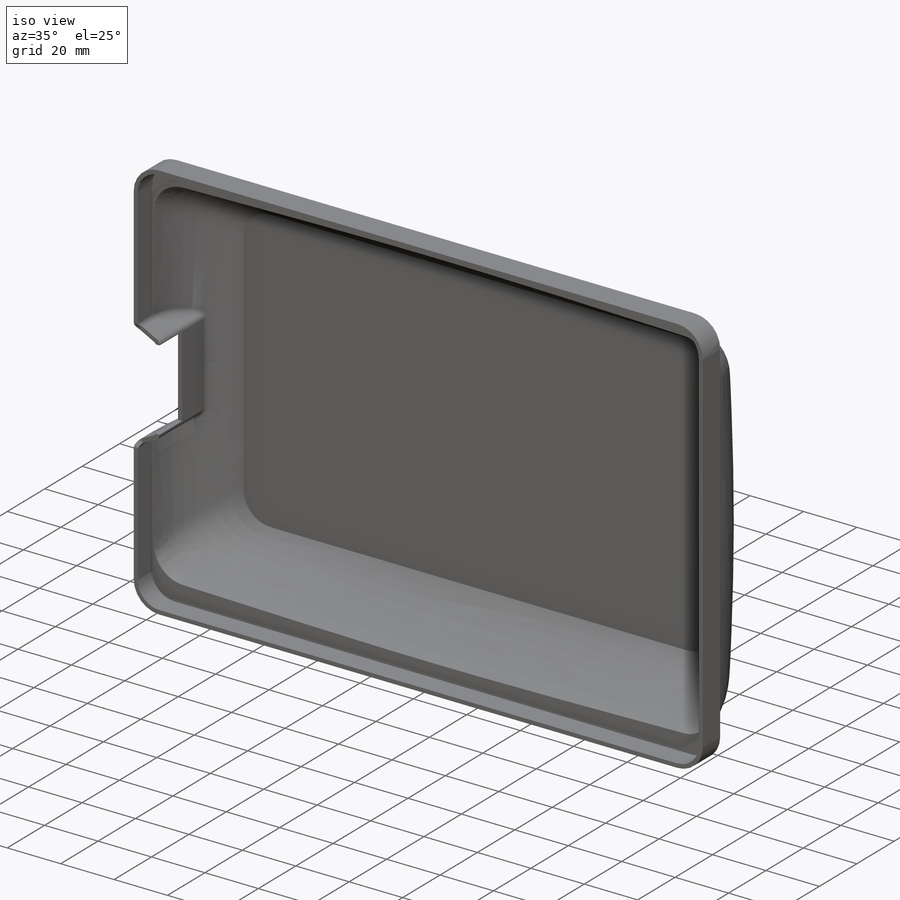
[diagram: iso view]
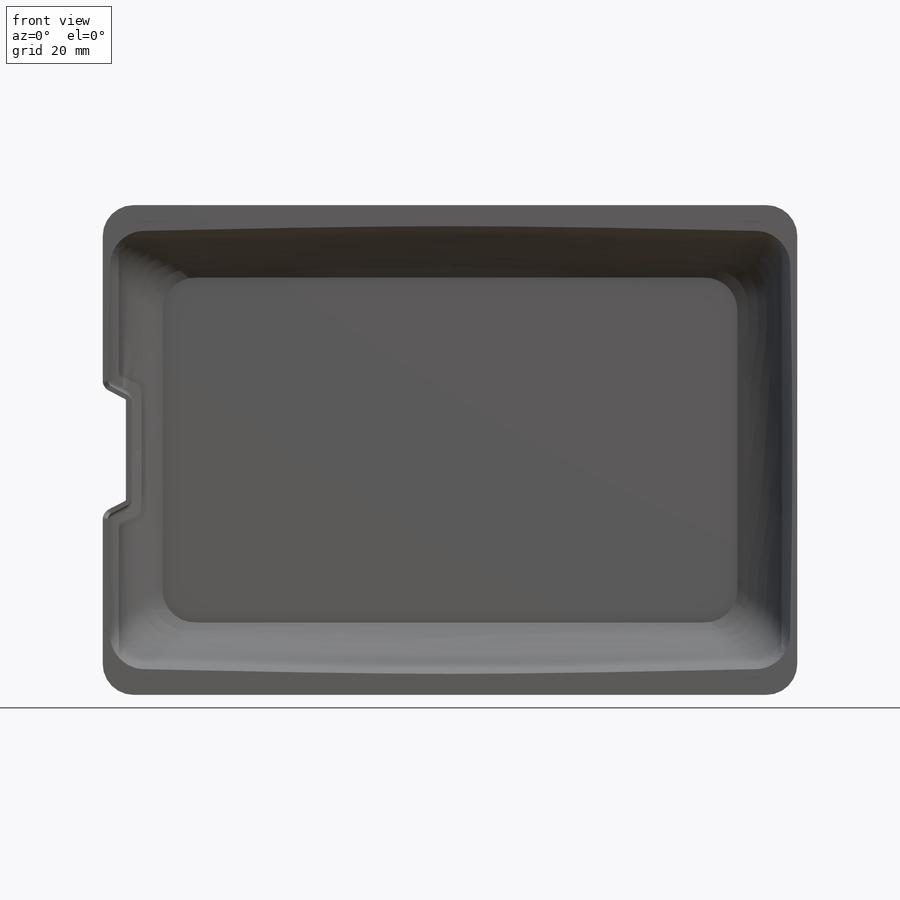
[diagram: front view]
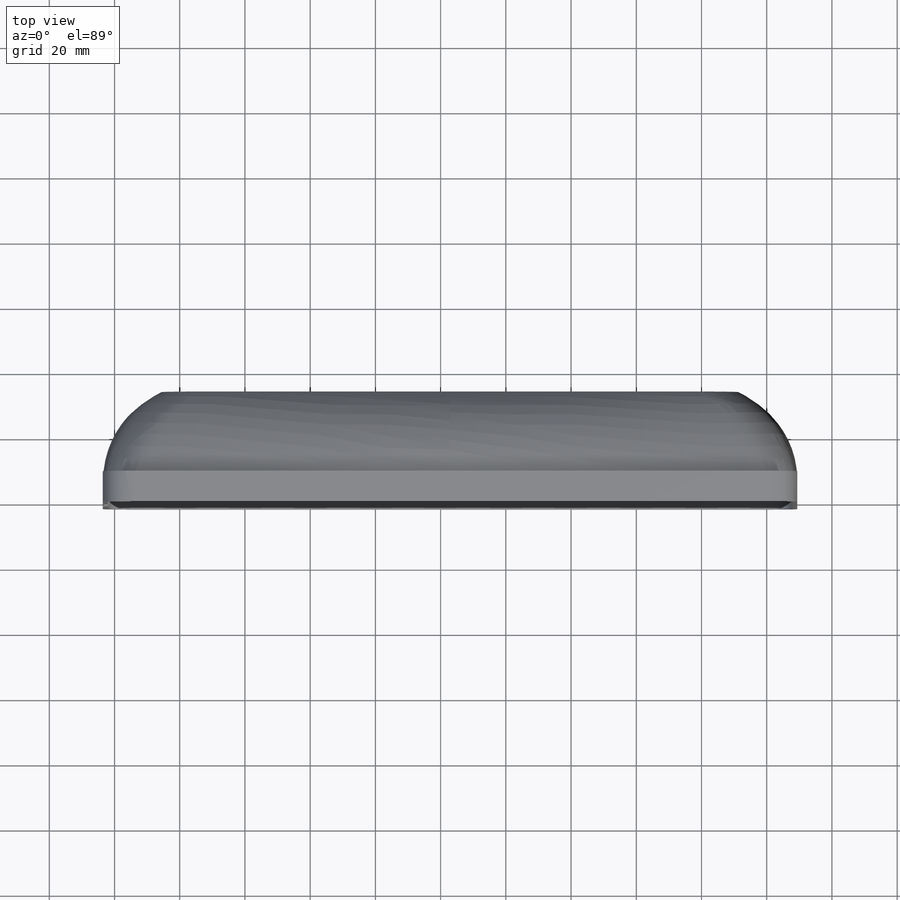
[diagram: top view]
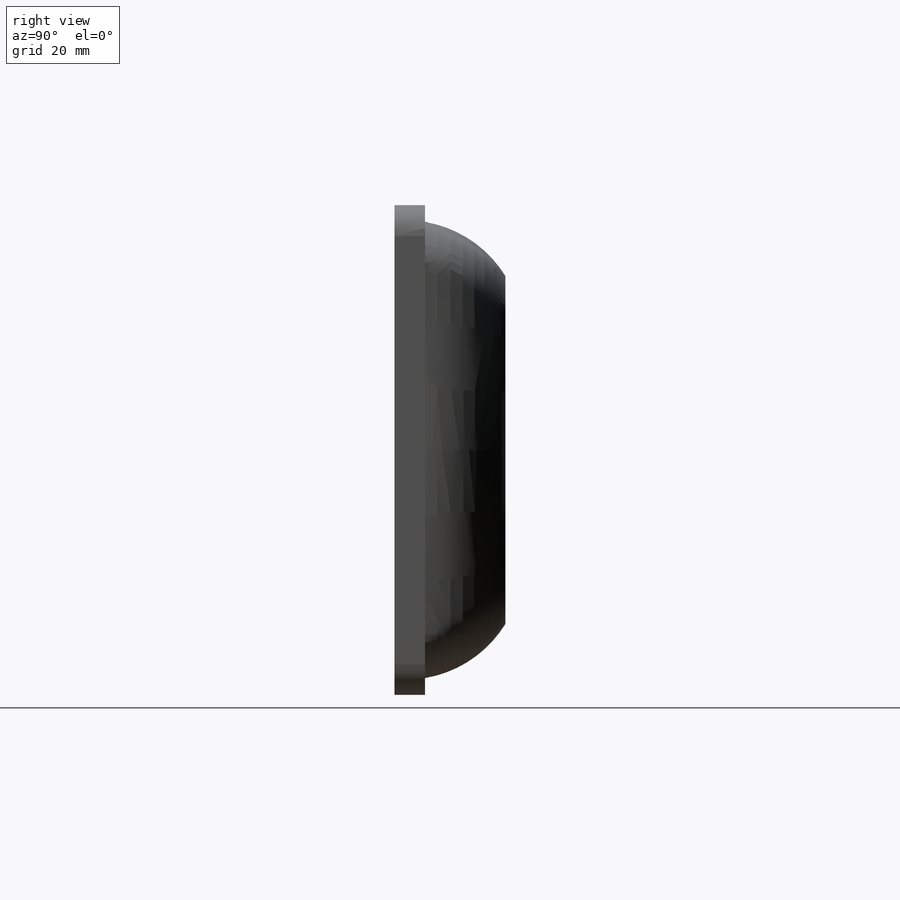
[diagram: right view]
SOLIDWORKS PART (.sldprt)
format: sldprt  version: not decoded by parser v0  size: 633,344 bytes
history: native  units: mm
features: sketch x14, plane x5, fillet x3, surface_op x2, mirror x2, material x1, cut_extrude x1 + 1 further entry (+13 scaffold rows collapsed)
feature tree (42):
  scaffold x13  (default folders/planes/origin — collapsed)
  material  "Material <nicht festgelegt>"
  sketch  "Sketch3"  dims[D1=10.0mm]
  plane  "Plane2"
  sketch  "Sketch1"
  surface_op  "Surface-Extrude1"
  sketch  "Sketch4"
  sketch  "Sketch5"
  sketch  "Sketch6"  dims[D1=10.0mm]
  plane  "Plane4"
  plane  "Plane3"
  sketch  "Sketch17"
  sketch  "Sketch18"
  sketch  "Sketch7"
  sketch  "Sketch19"
  surface_op  "Surface-Plane2"
  plane  "Plane1"
  sketch  "Sketch9"
  sketch  "3DSketch1"  dims[D1=~8.828973mm D2=7.0mm]
  sketch  "Sketch10"  dims[D1=2.0mm]
  mirror  "Mirror2"
  sketch  "Surface-Trim4"
  mirror  "Mirror3"
  fillet  "Fillet14"  Radius=2mm
  fillet  "Fillet15"  Radius=2mm
  fillet  "Fillet16"  Radius=2mm
  plane  "Plane7"  Offset=20mm
  "For Solid Plug"
  sketch  "Sketch20"
  cut_extrude  "Cut-Extrude1"  [1 undecoded]
decode coverage: 7 of 22 modeling features carry decoded parameters; 1 rows unclassified (native names shown)
note: ~ marks probable driven/reference dimensions
note: 1 parameter value undecoded
note: suppression state not decoded; provenance and decode notes live in map.json
